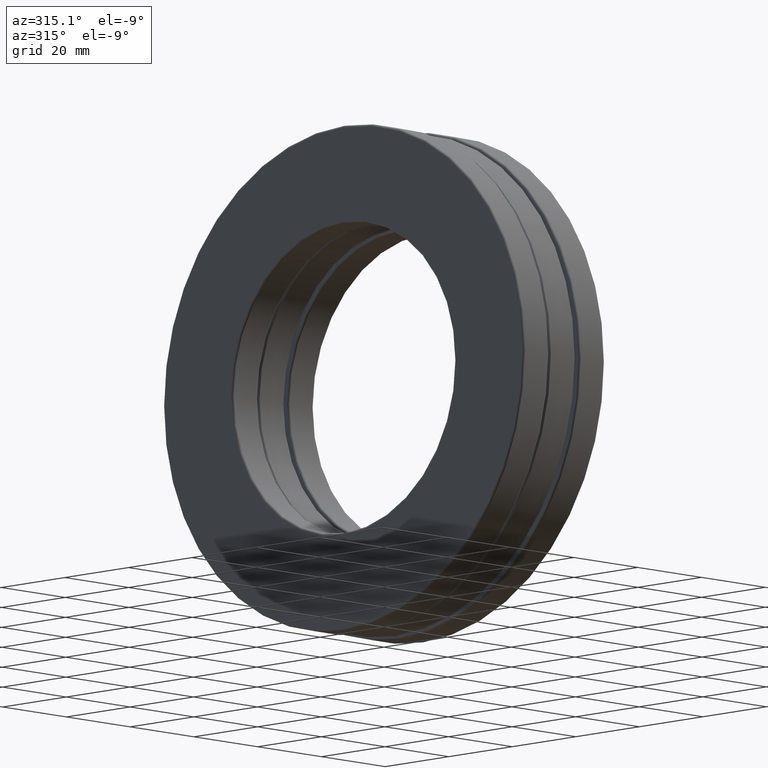
[diagram: clean part render]
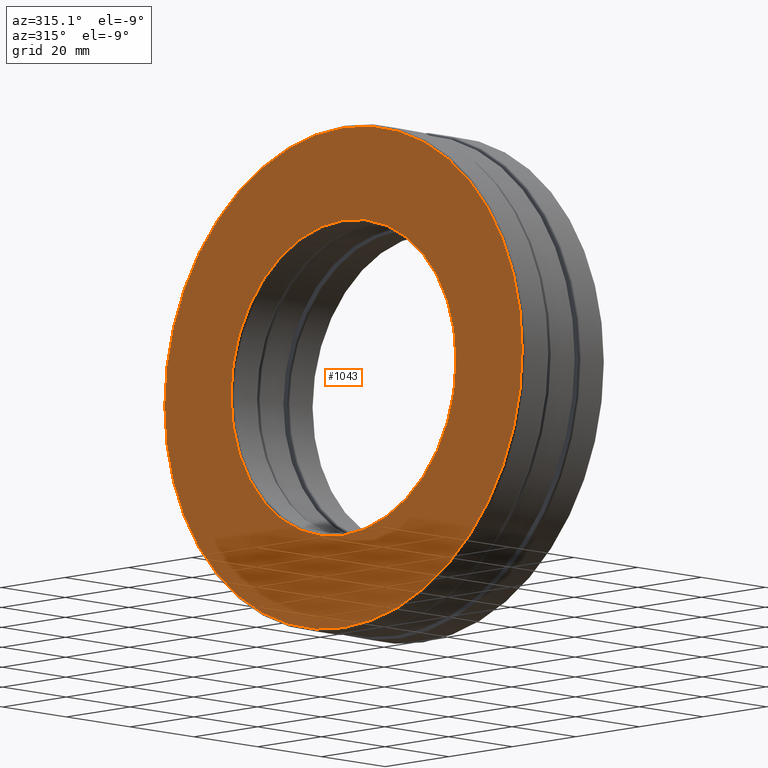
[diagram: same view with one face highlighted and labeled with its STEP entity id]
A machine part, auxiliary view. The second image highlights one B-rep face of the part: STEP entity #1043.
In plain terms, the highlighted planar face has unit normal (1, 0, 0).
Its self-contained STEP definition (entity closure, byte-faithful):
#29 = AXIS2_PLACEMENT_3D ( 'NONE', #699, #378, #135 ) ;
#31 = PLANE ( 'NONE',  #506 ) ;
#81 = EDGE_LOOP ( 'NONE', ( #1155 ) ) ;
#135 = DIRECTION ( 'NONE',  ( 0.0000000000000000000, 0.0000000000000000000, 1.000000000000000000 ) ) ;
#168 = CARTESIAN_POINT ( 'NONE',  ( -0.5000000000000000000, 0.0000000000000000000, 1.395000000000000000 ) ) ;
#171 = VERTEX_POINT ( 'NONE', #168 ) ;
#253 = DIRECTION ( 'NONE',  ( -1.000000000000000000, -0.0000000000000000000, -0.0000000000000000000 ) ) ;
#366 = EDGE_LOOP ( 'NONE', ( #767 ) ) ;
#378 = DIRECTION ( 'NONE',  ( -1.000000000000000000, -0.0000000000000000000, -0.0000000000000000000 ) ) ;
#379 = DIRECTION ( 'NONE',  ( 0.0000000000000000000, 0.0000000000000000000, 1.000000000000000000 ) ) ;
#392 = FACE_OUTER_BOUND ( 'NONE', #81, .T. ) ;
#395 = CARTESIAN_POINT ( 'NONE',  ( -0.5000000000000000000, 0.0000000000000000000, 0.0000000000000000000 ) ) ;
#490 = DIRECTION ( 'NONE',  ( 1.000000000000000000, 0.0000000000000000000, 0.0000000000000000000 ) ) ;
#506 = AXIS2_PLACEMENT_3D ( 'NONE', #395, #490, #935 ) ;
#590 = EDGE_CURVE ( 'NONE', #171, #171, #1079, .T. ) ;
#699 = CARTESIAN_POINT ( 'NONE',  ( -0.5000000000000000000, 0.0000000000000000000, 0.0000000000000000000 ) ) ;
#752 = CIRCLE ( 'NONE', #1395, 2.214375000000000000 ) ;
#767 = ORIENTED_EDGE ( 'NONE', *, *, #590, .F. ) ;
#885 = VERTEX_POINT ( 'NONE', #1339 ) ;
#935 = DIRECTION ( 'NONE',  ( 0.0000000000000000000, 0.0000000000000000000, -1.000000000000000000 ) ) ;
#1004 = EDGE_CURVE ( 'NONE', #885, #885, #752, .T. ) ;
#1043 = ADVANCED_FACE ( 'NONE', ( #1265, #392 ), #31, .F. ) ;
#1079 = CIRCLE ( 'NONE', #29, 1.395000000000000000 ) ;
#1155 = ORIENTED_EDGE ( 'NONE', *, *, #1004, .T. ) ;
#1224 = CARTESIAN_POINT ( 'NONE',  ( -0.5000000000000000000, 0.0000000000000000000, 0.0000000000000000000 ) ) ;
#1265 = FACE_BOUND ( 'NONE', #366, .T. ) ;
#1339 = CARTESIAN_POINT ( 'NONE',  ( -0.5000000000000000000, 0.0000000000000000000, 2.214375000000000000 ) ) ;
#1395 = AXIS2_PLACEMENT_3D ( 'NONE', #1224, #253, #379 ) ;